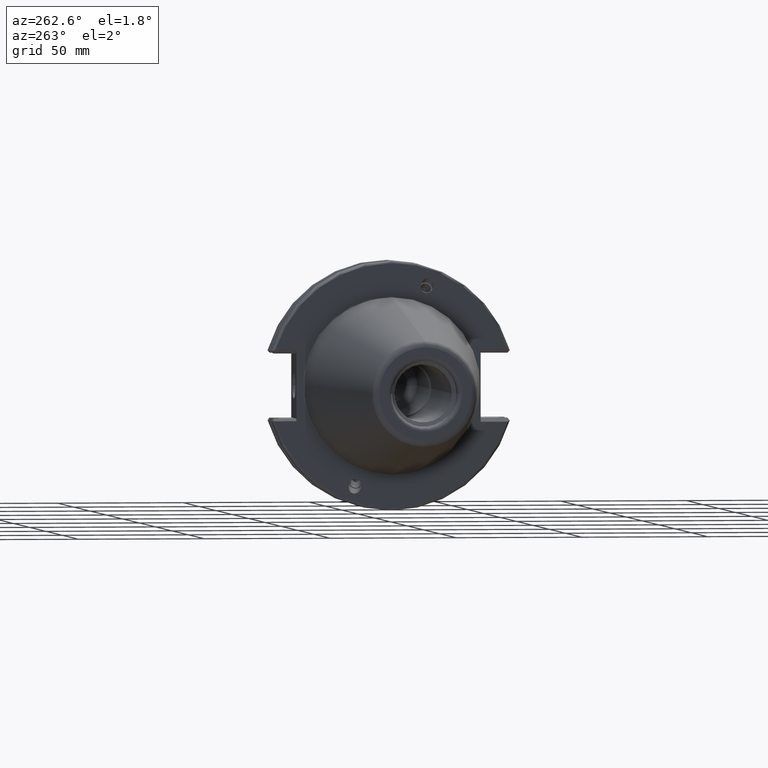
[diagram: clean part render]
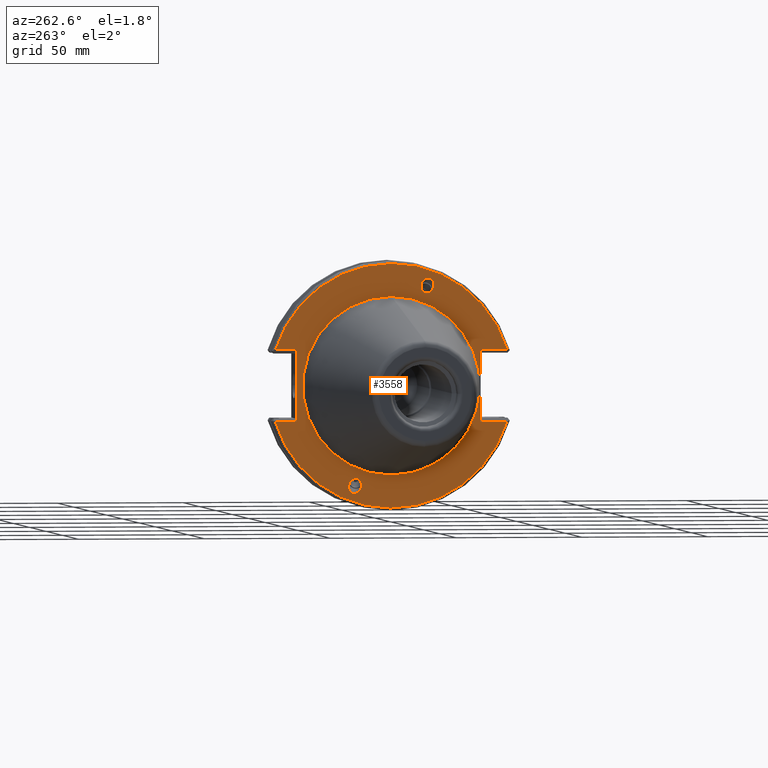
[diagram: same view with one face highlighted and labeled with its STEP entity id]
A machine part, auxiliary view. The second image highlights one B-rep face of the part: STEP entity #3558.
In plain terms, the highlighted planar face has unit normal (1, 0, 0).
Its self-contained STEP definition (entity closure, byte-faithful):
#986=CARTESIAN_POINT('',(1.25E-1,0.E0,0.E0));
#987=DIRECTION('',(-1.E0,0.E0,0.E0));
#988=DIRECTION('',(0.E0,9.578437800592E-1,-2.872895629880E-1));
#989=AXIS2_PLACEMENT_3D('',#986,#987,#988);
#1011=CARTESIAN_POINT('',(1.25E-1,0.E0,0.E0));
#1012=DIRECTION('',(1.E0,0.E0,0.E0));
#1013=DIRECTION('',(0.E0,0.E0,1.E0));
#1014=AXIS2_PLACEMENT_3D('',#1011,#1012,#1013);
#1016=CARTESIAN_POINT('',(1.25E-1,0.E0,0.E0));
#1017=DIRECTION('',(1.E0,0.E0,0.E0));
#1018=DIRECTION('',(0.E0,0.E0,-1.E0));
#1019=AXIS2_PLACEMENT_3D('',#1016,#1017,#1018);
#1021=DIRECTION('',(0.E0,1.E0,0.E0));
#1022=VECTOR('',#1021,3.337355260485E-1);
#1023=CARTESIAN_POINT('',(1.25E-1,1.484251968504E0,-5.452755905512E-1));
#1024=LINE('',#1023,#1022);
#1025=DIRECTION('',(0.E0,-1.E0,0.E0));
#1026=VECTOR('',#1025,3.277147769522E-1);
#1027=CARTESIAN_POINT('',(1.25E-1,1.811966745456E0,5.649606299213E-1));
#1028=LINE('',#1027,#1026);
#1029=DIRECTION('',(0.E0,-1.E0,0.E0));
#1030=VECTOR('',#1029,4.143289501806E-1);
#1031=CARTESIAN_POINT('',(1.25E-1,-1.397637795276E0,5.649606299213E-1));
#1032=LINE('',#1031,#1030);
#1033=DIRECTION('',(0.E0,1.E0,0.E0));
#1034=VECTOR('',#1033,4.143289501806E-1);
#1035=CARTESIAN_POINT('',(1.25E-1,-1.811966745456E0,-5.649606299213E-1));
#1036=LINE('',#1035,#1034);
#1037=CARTESIAN_POINT('',(1.25E-1,5.785015005873E-1,-1.671642687050E0));
#1038=CARTESIAN_POINT('',(1.25E-1,5.666721228083E-1,-1.671642687050E0));
#1039=CARTESIAN_POINT('',(1.25E-1,5.405609660912E-1,-1.666587233229E0));
#1040=CARTESIAN_POINT('',(1.25E-1,5.018929389367E-1,-1.639702618744E0));
#1041=CARTESIAN_POINT('',(1.25E-1,4.742496635960E-1,-1.597405912407E0));
#1042=CARTESIAN_POINT('',(1.25E-1,4.630258277251E-1,-1.553822443820E0));
#1043=CARTESIAN_POINT('',(1.25E-1,4.646641451920E-1,-1.510238975232E0));
#1044=CARTESIAN_POINT('',(1.25E-1,4.830049058370E-1,-1.467942268895E0));
#1045=CARTESIAN_POINT('',(1.25E-1,5.157600725588E-1,-1.441057654410E0));
#1046=CARTESIAN_POINT('',(1.25E-1,5.407593594039E-1,-1.436002200589E0));
#1047=CARTESIAN_POINT('',(1.25E-1,5.525887371829E-1,-1.436002200589E0));
#1049=CARTESIAN_POINT('',(1.25E-1,5.525887371829E-1,-1.436002200589E0));
#1050=CARTESIAN_POINT('',(1.25E-1,5.644181149619E-1,-1.436002200589E0));
#1051=CARTESIAN_POINT('',(1.25E-1,5.905292716790E-1,-1.441057654410E0));
#1052=CARTESIAN_POINT('',(1.25E-1,6.291972988335E-1,-1.467942268895E0));
#1053=CARTESIAN_POINT('',(1.25E-1,6.568405741742E-1,-1.510238975232E0));
#1054=CARTESIAN_POINT('',(1.25E-1,6.680644100451E-1,-1.553822443820E0));
#1055=CARTESIAN_POINT('',(1.25E-1,6.664260925782E-1,-1.597405912407E0));
#1056=CARTESIAN_POINT('',(1.25E-1,6.480853319332E-1,-1.639702618744E0));
#1057=CARTESIAN_POINT('',(1.25E-1,6.153301652113E-1,-1.666587233229E0));
#1058=CARTESIAN_POINT('',(1.25E-1,5.903308783663E-1,-1.671642687050E0));
#1059=CARTESIAN_POINT('',(1.25E-1,5.785015005873E-1,-1.671642687050E0));
#1061=CARTESIAN_POINT('',(1.25E-1,-5.785015005873E-1,1.671642687050E0));
#1062=CARTESIAN_POINT('',(1.25E-1,-5.666721228083E-1,1.671642687050E0));
#1063=CARTESIAN_POINT('',(1.25E-1,-5.405609660912E-1,1.666587233229E0));
#1064=CARTESIAN_POINT('',(1.25E-1,-5.018929389367E-1,1.639702618744E0));
#1065=CARTESIAN_POINT('',(1.25E-1,-4.742496635960E-1,1.597405912407E0));
#1066=CARTESIAN_POINT('',(1.25E-1,-4.630258277251E-1,1.553822443820E0));
#1067=CARTESIAN_POINT('',(1.25E-1,-4.646641451920E-1,1.510238975232E0));
#1068=CARTESIAN_POINT('',(1.25E-1,-4.830049058370E-1,1.467942268895E0));
#1069=CARTESIAN_POINT('',(1.25E-1,-5.157600725588E-1,1.441057654410E0));
#1070=CARTESIAN_POINT('',(1.25E-1,-5.407593594039E-1,1.436002200589E0));
#1071=CARTESIAN_POINT('',(1.25E-1,-5.525887371829E-1,1.436002200589E0));
#1073=CARTESIAN_POINT('',(1.25E-1,-5.525887371829E-1,1.436002200589E0));
#1074=CARTESIAN_POINT('',(1.25E-1,-5.644181149619E-1,1.436002200589E0));
#1075=CARTESIAN_POINT('',(1.25E-1,-5.905292716790E-1,1.441057654410E0));
#1076=CARTESIAN_POINT('',(1.25E-1,-6.291972988335E-1,1.467942268895E0));
#1077=CARTESIAN_POINT('',(1.25E-1,-6.568405741742E-1,1.510238975232E0));
#1078=CARTESIAN_POINT('',(1.25E-1,-6.680644100451E-1,1.553822443820E0));
#1079=CARTESIAN_POINT('',(1.25E-1,-6.664260925782E-1,1.597405912407E0));
#1080=CARTESIAN_POINT('',(1.25E-1,-6.480853319332E-1,1.639702618744E0));
#1081=CARTESIAN_POINT('',(1.25E-1,-6.153301652113E-1,1.666587233229E0));
#1082=CARTESIAN_POINT('',(1.25E-1,-5.903308783663E-1,1.671642687050E0));
#1083=CARTESIAN_POINT('',(1.25E-1,-5.785015005873E-1,1.671642687050E0));
#1420=DIRECTION('',(0.E0,0.E0,1.E0));
#1421=VECTOR('',#1420,1.129921259843E0);
#1422=CARTESIAN_POINT('',(1.25E-1,-1.397637795276E0,-5.649606299213E-1));
#1423=LINE('',#1422,#1421);
#1436=CARTESIAN_POINT('',(1.25E-1,-1.811966745456E0,5.649606299213E-1));
#1444=CARTESIAN_POINT('',(1.25E-1,0.E0,0.E0));
#1445=DIRECTION('',(-1.E0,0.E0,0.E0));
#1446=DIRECTION('',(0.E0,-9.546716256355E-1,2.976610273558E-1));
#1447=AXIS2_PLACEMENT_3D('',#1444,#1445,#1446);
#1516=DIRECTION('',(0.E0,0.E0,-1.E0));
#1517=VECTOR('',#1516,1.110236220472E0);
#1518=CARTESIAN_POINT('',(1.25E-1,1.484251968504E0,5.649606299213E-1));
#1519=LINE('',#1518,#1517);
#1974=CARTESIAN_POINT('',(1.25E-1,0.E0,1.386622047244E0));
#1975=CARTESIAN_POINT('',(1.25E-1,0.E0,-1.386622047244E0));
#1976=VERTEX_POINT('',#1974);
#1977=VERTEX_POINT('',#1975);
#1992=CARTESIAN_POINT('',(1.25E-1,1.484251968504E0,-5.452755905512E-1));
#1993=CARTESIAN_POINT('',(1.25E-1,1.817987494552E0,-5.452755905512E-1));
#1994=VERTEX_POINT('',#1992);
#1995=VERTEX_POINT('',#1993);
#2006=CARTESIAN_POINT('',(1.25E-1,1.811966745456E0,5.649606299213E-1));
#2007=CARTESIAN_POINT('',(1.25E-1,1.484251968504E0,5.649606299213E-1));
#2008=VERTEX_POINT('',#2006);
#2009=VERTEX_POINT('',#2007);
#2016=CARTESIAN_POINT('',(1.25E-1,-1.811966745456E0,-5.649606299213E-1));
#2017=CARTESIAN_POINT('',(1.25E-1,-1.397637795276E0,-5.649606299213E-1));
#2018=VERTEX_POINT('',#2016);
#2019=VERTEX_POINT('',#2017);
#2020=VERTEX_POINT('',#1436);
#2026=CARTESIAN_POINT('',(1.25E-1,-1.397637795276E0,5.649606299213E-1));
#2027=VERTEX_POINT('',#2026);
#2042=VERTEX_POINT('',#1037);
#2043=VERTEX_POINT('',#1047);
#2058=VERTEX_POINT('',#1061);
#2059=VERTEX_POINT('',#1071);
#3518=CARTESIAN_POINT('',(1.25E-1,0.E0,0.E0));
#3519=DIRECTION('',(1.E0,0.E0,0.E0));
#3520=DIRECTION('',(0.E0,0.E0,1.E0));
#3521=AXIS2_PLACEMENT_3D('',#3518,#3519,#3520);
#3522=PLANE('',#3521);
#3524=ORIENTED_EDGE('',*,*,#3523,.F.);
#3526=ORIENTED_EDGE('',*,*,#3525,.F.);
#3528=ORIENTED_EDGE('',*,*,#3527,.F.);
#3530=ORIENTED_EDGE('',*,*,#3529,.F.);
#3532=ORIENTED_EDGE('',*,*,#3531,.F.);
#3534=ORIENTED_EDGE('',*,*,#3533,.F.);
#3536=ORIENTED_EDGE('',*,*,#3535,.F.);
#3537=ORIENTED_EDGE('',*,*,#3504,.F.);
#3538=EDGE_LOOP('',(#3524,#3526,#3528,#3530,#3532,#3534,#3536,#3537));
#3539=FACE_OUTER_BOUND('',#3538,.F.);
#3541=ORIENTED_EDGE('',*,*,#3540,.F.);
#3543=ORIENTED_EDGE('',*,*,#3542,.F.);
#3544=EDGE_LOOP('',(#3541,#3543));
#3545=FACE_BOUND('',#3544,.F.);
#3547=ORIENTED_EDGE('',*,*,#3546,.T.);
#3549=ORIENTED_EDGE('',*,*,#3548,.T.);
#3550=EDGE_LOOP('',(#3547,#3549));
#3551=FACE_BOUND('',#3550,.F.);
#3553=ORIENTED_EDGE('',*,*,#3552,.T.);
#3555=ORIENTED_EDGE('',*,*,#3554,.T.);
#3556=EDGE_LOOP('',(#3553,#3555));
#3557=FACE_BOUND('',#3556,.F.);
#3558=ADVANCED_FACE('',(#3539,#3545,#3551,#3557),#3522,.F.);
#990=CIRCLE('',#989,1.898E0);
#1015=CIRCLE('',#1014,1.386622047244E0);
#1020=CIRCLE('',#1019,1.386622047244E0);
#1048=B_SPLINE_CURVE_WITH_KNOTS('',3,(#1037,#1038,#1039,#1040,#1041,#1042,#1043,
#1044,#1045,#1046,#1047),.UNSPECIFIED.,.F.,.F.,(4,1,1,1,1,1,1,1,4),(0.E0,
1.25E-1,2.5E-1,3.75E-1,5.E-1,6.25E-1,7.5E-1,8.75E-1,1.E0),.UNSPECIFIED.);
#1060=B_SPLINE_CURVE_WITH_KNOTS('',3,(#1049,#1050,#1051,#1052,#1053,#1054,#1055,
#1056,#1057,#1058,#1059),.UNSPECIFIED.,.F.,.F.,(4,1,1,1,1,1,1,1,4),(0.E0,
1.25E-1,2.5E-1,3.75E-1,5.E-1,6.25E-1,7.5E-1,8.75E-1,1.E0),.UNSPECIFIED.);
#1072=B_SPLINE_CURVE_WITH_KNOTS('',3,(#1061,#1062,#1063,#1064,#1065,#1066,#1067,
#1068,#1069,#1070,#1071),.UNSPECIFIED.,.F.,.F.,(4,1,1,1,1,1,1,1,4),(0.E0,
1.25E-1,2.5E-1,3.75E-1,5.E-1,6.25E-1,7.5E-1,8.75E-1,1.E0),.UNSPECIFIED.);
#1084=B_SPLINE_CURVE_WITH_KNOTS('',3,(#1073,#1074,#1075,#1076,#1077,#1078,#1079,
#1080,#1081,#1082,#1083),.UNSPECIFIED.,.F.,.F.,(4,1,1,1,1,1,1,1,4),(0.E0,
1.25E-1,2.5E-1,3.75E-1,5.E-1,6.25E-1,7.5E-1,8.75E-1,1.E0),.UNSPECIFIED.);
#1448=CIRCLE('',#1447,1.898E0);
#3504=EDGE_CURVE('',#1995,#2018,#990,.T.);
#3523=EDGE_CURVE('',#1994,#1995,#1024,.T.);
#3525=EDGE_CURVE('',#2009,#1994,#1519,.T.);
#3527=EDGE_CURVE('',#2008,#2009,#1028,.T.);
#3529=EDGE_CURVE('',#2020,#2008,#1448,.T.);
#3531=EDGE_CURVE('',#2027,#2020,#1032,.T.);
#3533=EDGE_CURVE('',#2019,#2027,#1423,.T.);
#3535=EDGE_CURVE('',#2018,#2019,#1036,.T.);
#3540=EDGE_CURVE('',#1976,#1977,#1015,.T.);
#3542=EDGE_CURVE('',#1977,#1976,#1020,.T.);
#3546=EDGE_CURVE('',#2042,#2043,#1048,.T.);
#3548=EDGE_CURVE('',#2043,#2042,#1060,.T.);
#3552=EDGE_CURVE('',#2058,#2059,#1072,.T.);
#3554=EDGE_CURVE('',#2059,#2058,#1084,.T.);